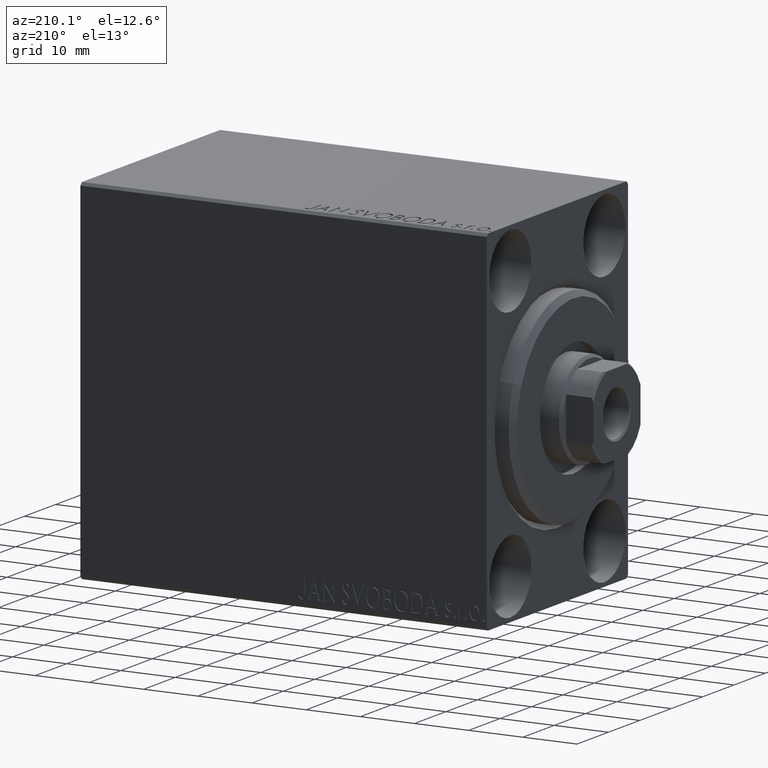
[diagram: clean part render]
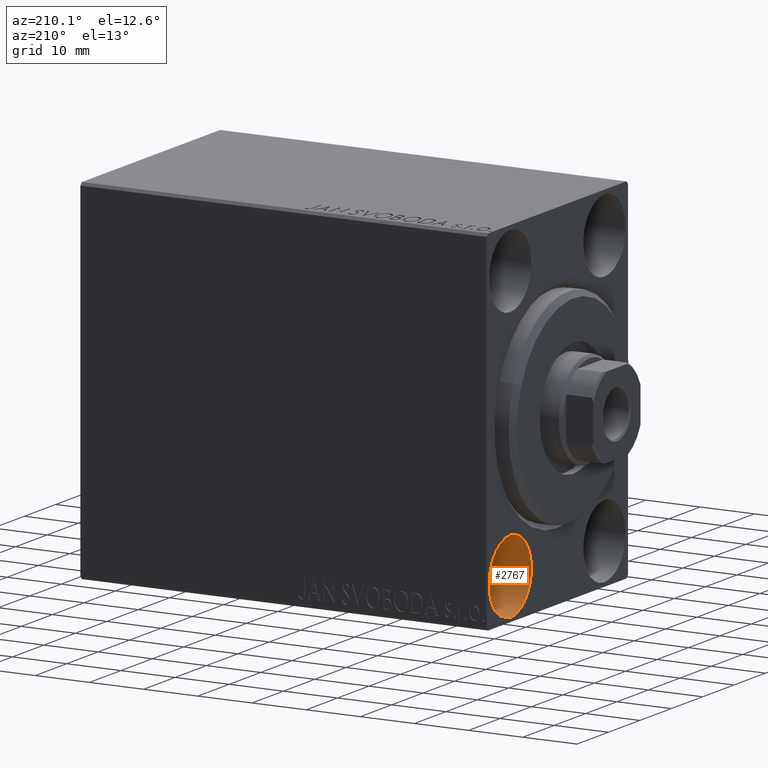
[diagram: same view with one face highlighted and labeled with its STEP entity id]
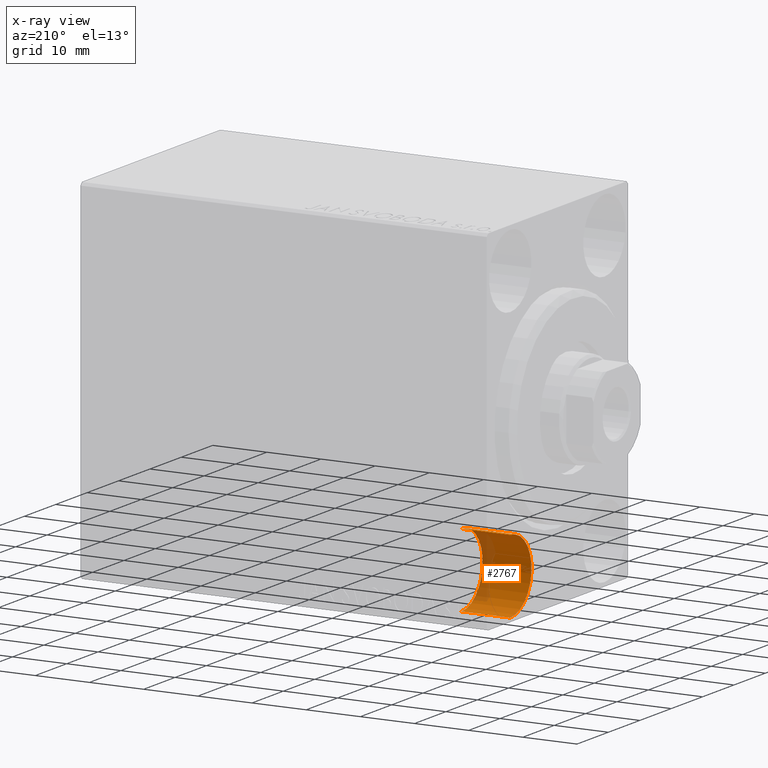
[diagram: x-ray of the same camera — body ghosted, the highlighted face saturated]
A machine part, auxiliary view. The second image highlights one B-rep face of the part: STEP entity #2767.
The next image is the same camera in x-ray: the body ghosted, the highlighted face saturated — about 19% of this face is hidden behind the body in this view.
In plain terms, the highlighted cylindrical surface (partial cylindrical patch) has radius 6.75 mm, axis along (-1, -0, -0).
Its self-contained STEP definition (entity closure, byte-faithful):
#1661 = EDGE_CURVE ( 'NONE', #39445, #9113, #42608, .T. ) ;
#2378 = CIRCLE ( 'NONE', #32950, 6.749999999999999112 ) ;
#2767 = ADVANCED_FACE ( 'NONE', ( #39223 ), #32546, .F. ) ;
#3340 = CARTESIAN_POINT ( 'NONE',  ( 9.000000000000000000, 14.99999999999999645, -31.75000000000000000 ) ) ;
#4063 = CARTESIAN_POINT ( 'NONE',  ( 9.000000000000000000, 14.99999999999999645, -18.25000000000000355 ) ) ;
#6084 = DIRECTION ( 'NONE',  ( 0.000000000000000000, 0.000000000000000000, 1.000000000000000000 ) ) ;
#9113 = VERTEX_POINT ( 'NONE', #35911 ) ;
#9313 = VECTOR ( 'NONE', #40285, 1000.000000000000000 ) ;
#11240 = CIRCLE ( 'NONE', #21193, 6.749999999999999112 ) ;
#11667 = DIRECTION ( 'NONE',  ( -1.000000000000000000, -0.000000000000000000, -0.000000000000000000 ) ) ;
#13123 = DIRECTION ( 'NONE',  ( -1.000000000000000000, 0.000000000000000000, 0.000000000000000000 ) ) ;
#15825 = CARTESIAN_POINT ( 'NONE',  ( 9.000000000000000000, 14.99999999999999645, -25.00000000000000000 ) ) ;
#17195 = EDGE_CURVE ( 'NONE', #23138, #39445, #11240, .T. ) ;
#18514 = DIRECTION ( 'NONE',  ( 0.000000000000000000, 0.000000000000000000, 1.000000000000000000 ) ) ;
#18776 = VECTOR ( 'NONE', #11667, 1000.000000000000000 ) ;
#18991 = CARTESIAN_POINT ( 'NONE',  ( 0.000000000000000000, 14.99999999999999645, -25.00000000000000000 ) ) ;
#19449 = ORIENTED_EDGE ( 'NONE', *, *, #39199, .T. ) ;
#20693 = LINE ( 'NONE', #3340, #9313 ) ;
#21193 = AXIS2_PLACEMENT_3D ( 'NONE', #43623, #13123, #23378 ) ;
#21510 = CARTESIAN_POINT ( 'NONE',  ( 9.000000000000000000, 14.99999999999999645, -31.75000000000000000 ) ) ;
#21652 = DIRECTION ( 'NONE',  ( -1.000000000000000000, -0.000000000000000000, -0.000000000000000000 ) ) ;
#23138 = VERTEX_POINT ( 'NONE', #21510 ) ;
#23378 = DIRECTION ( 'NONE',  ( 0.000000000000000000, 0.000000000000000000, 1.000000000000000000 ) ) ;
#25700 = CARTESIAN_POINT ( 'NONE',  ( 9.000000000000000000, 14.99999999999999645, -18.25000000000000355 ) ) ;
#27180 = EDGE_CURVE ( 'NONE', #23138, #30556, #20693, .T. ) ;
#27381 = ORIENTED_EDGE ( 'NONE', *, *, #27180, .T. ) ;
#27929 = EDGE_LOOP ( 'NONE', ( #39179, #27381, #19449, #32890 ) ) ;
#30236 = CARTESIAN_POINT ( 'NONE',  ( 0.000000000000000000, 14.99999999999999645, -31.75000000000000000 ) ) ;
#30556 = VERTEX_POINT ( 'NONE', #30236 ) ;
#32546 = CYLINDRICAL_SURFACE ( 'NONE', #40822, 6.749999999999999112 ) ;
#32580 = DIRECTION ( 'NONE',  ( -1.000000000000000000, 0.000000000000000000, 0.000000000000000000 ) ) ;
#32890 = ORIENTED_EDGE ( 'NONE', *, *, #1661, .F. ) ;
#32950 = AXIS2_PLACEMENT_3D ( 'NONE', #18991, #32580, #6084 ) ;
#35911 = CARTESIAN_POINT ( 'NONE',  ( 0.000000000000000000, 14.99999999999999645, -18.25000000000000355 ) ) ;
#39179 = ORIENTED_EDGE ( 'NONE', *, *, #17195, .F. ) ;
#39199 = EDGE_CURVE ( 'NONE', #30556, #9113, #2378, .T. ) ;
#39223 = FACE_OUTER_BOUND ( 'NONE', #27929, .T. ) ;
#39445 = VERTEX_POINT ( 'NONE', #4063 ) ;
#40285 = DIRECTION ( 'NONE',  ( -1.000000000000000000, -0.000000000000000000, -0.000000000000000000 ) ) ;
#40822 = AXIS2_PLACEMENT_3D ( 'NONE', #15825, #21652, #18514 ) ;
#42608 = LINE ( 'NONE', #25700, #18776 ) ;
#43623 = CARTESIAN_POINT ( 'NONE',  ( 9.000000000000000000, 14.99999999999999645, -25.00000000000000000 ) ) ;